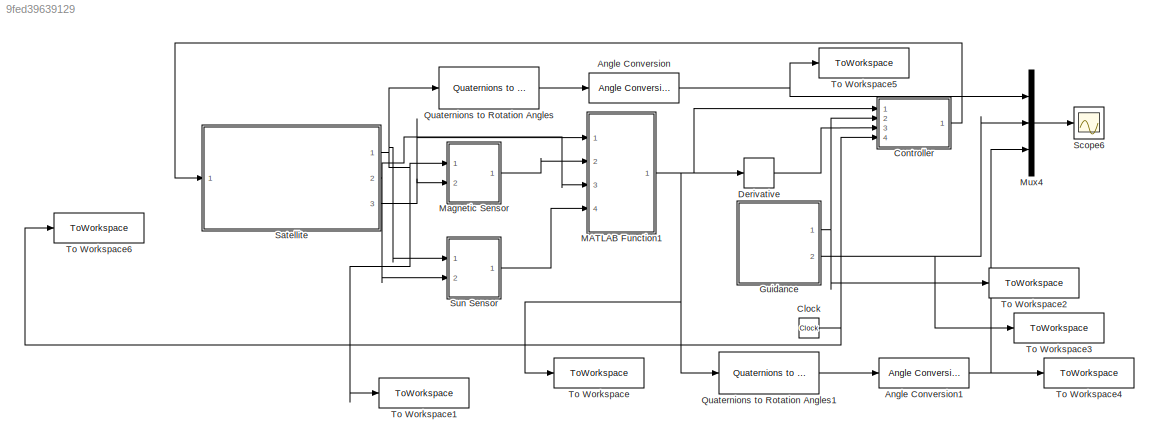
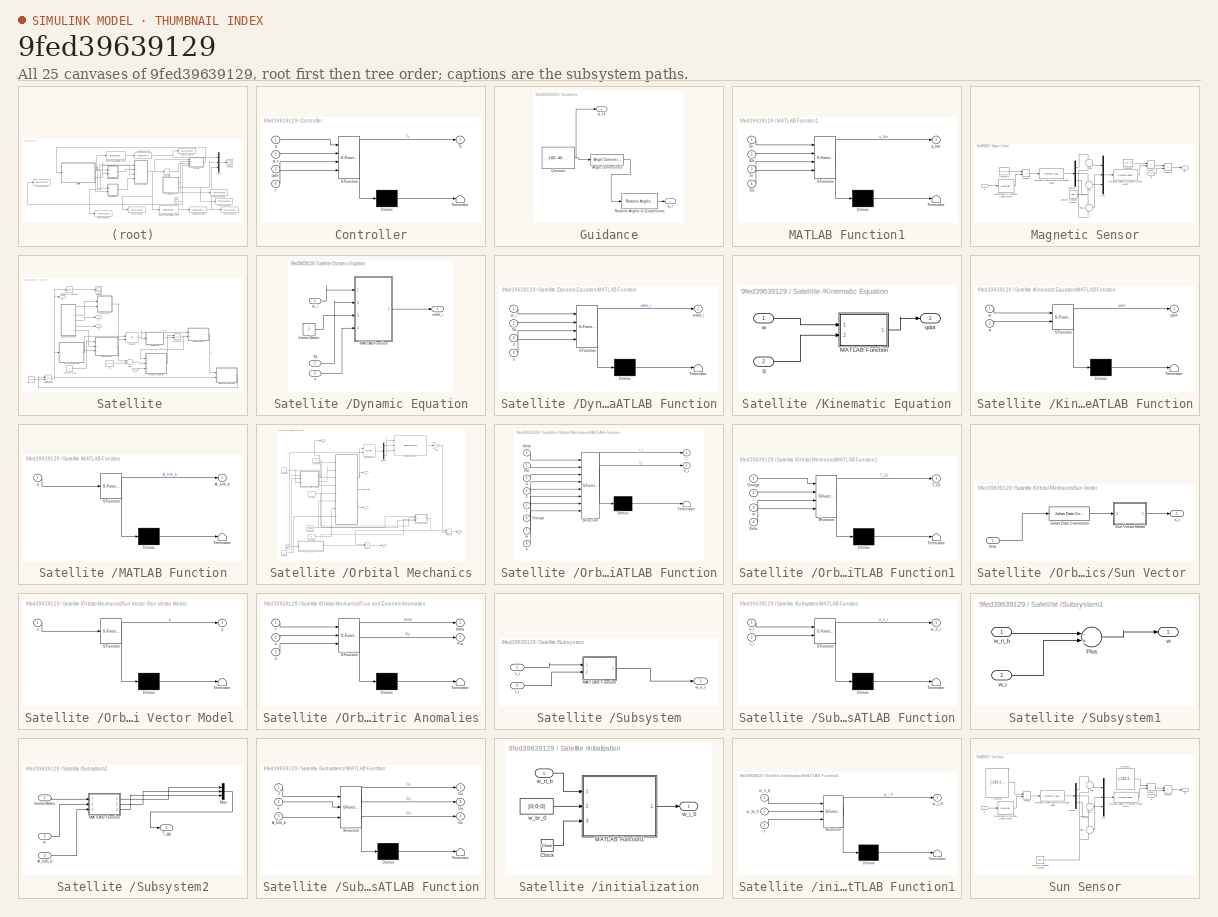
[diagram: thumbnail index - all 25 canvases of the model, root first then tree order]
MODEL slx_9fed39639129
KIND model
CONFIG AbsTol = auto
CONFIG EnableMultiTasking = off
CONFIG FixedStep = 0.00005
CONFIG MaxStep = auto
CONFIG MinStep = auto
CONFIG RelTol = 1e-3
CONFIG SampleTimeConstraint = Unconstrained
CONFIG Solver = ode23tb
CONFIG SolverName = ode23tb
CONFIG StartTime = 0.0
CONFIG StopTime = 20
BLOCK [Reference] Angle Conversion  REF=aerolibconvert2/Angle Conversion
  Ports = [1, 1]
  SourceBlock = aerolibconvert2/Angle Conversion
  SourceProductBaseCode = AE
  SourceProductName = Aerospace Blockset
  SourceType = Angle Conversion
BLOCK [Reference] Angle Conversion1  REF=aerolibconvert2/Angle Conversion
  Ports = [1, 1]
  SourceBlock = aerolibconvert2/Angle Conversion
  SourceProductBaseCode = AE
  SourceProductName = Aerospace Blockset
  SourceType = Angle Conversion
BLOCK [Clock] Clock
BLOCK [SubSystem] Controller
  ErrorFcn = Stateflow.Translate.translate
  PermitHierarchicalResolution = ExplicitOnly
  Ports = [4, 1]
  RequestExecContextInheritance = off
  SFBlockType = MATLAB Function
  TreatAsAtomicUnit = on
BLOCK [Demux] Controller/ Demux 
  Outputs = 1
  Ports = [1, 1]
BLOCK [S-Function] Controller/ SFunction 
  EnableBusSupport = on
  FunctionName = sf_sfun
  PortCounts = [4 2]
  Ports = [4, 2]
  SFcnIsStateOwnerBlock = off
  SFunctionDeploymentMode = off
  Tag = Stateflow S-Function 11
BLOCK [Terminator] Controller/ Terminator 
BLOCK [Outport] Controller/Tc
  IconDisplay = Port number
BLOCK [Inport] Controller/q
  IconDisplay = Port number
BLOCK [Inport] Controller/q_c
  IconDisplay = Port number
  Port = 2
BLOCK [Inport] Controller/qdot
  IconDisplay = Port number
  Port = 3
BLOCK [Inport] Controller/t
  IconDisplay = Port number
  Port = 4
BLOCK [Derivative] Derivative
BLOCK [SubSystem] Guidance
  Ports = [0, 2]
  RequestExecContextInheritance = off
BLOCK [Reference] Guidance/Angle Conversion2  REF=aerolibconvert2/Angle Conversion
  Ports = [1, 1]
  SourceBlock = aerolibconvert2/Angle Conversion
  SourceProductBaseCode = AE
  SourceProductName = Aerospace Blockset
  SourceType = Angle Conversion
BLOCK [Constant] Guidance/Constant
  Value = [-60; -40; 40]
  VectorParams1D = off
BLOCK [Reference] Guidance/Rotation Angles to Quaternions  REF=sharedtransform/Rotation Angles to Quaternions
  AttributesFormatString = Rotation Order: %<rotationOrder>
  Ports = [1, 1]
  SourceBlock = sharedtransform/Rotation Angles to Quaternions
  SourceProductBaseCode = AE
  SourceProductName = Aerospace Blockset
  SourceType = Ang2Quat
BLOCK [Outport] Guidance/q_c
  IconDisplay = Port number
BLOCK [Outport] Guidance/q_c1
  IconDisplay = Port number
  Port = 2
BLOCK [SubSystem] MATLAB Function1
  ErrorFcn = Stateflow.Translate.translate
  PermitHierarchicalResolution = ExplicitOnly
  Ports = [4, 1]
  RequestExecContextInheritance = off
  SFBlockType = MATLAB Function
  TreatAsAtomicUnit = on
BLOCK [Demux] MATLAB Function1/ Demux 
  Outputs = 1
  Ports = [1, 1]
BLOCK [S-Function] MATLAB Function1/ SFunction 
  EnableBusSupport = on
  FunctionName = sf_sfun
  PortCounts = [4 2]
  Ports = [4, 2]
  SFcnIsStateOwnerBlock = off
  SFunctionDeploymentMode = off
  Tag = Stateflow S-Function 12
BLOCK [Terminator] MATLAB Function1/ Terminator 
BLOCK [Inport] MATLAB Function1/Bb
  IconDisplay = Port number
  Port = 2
BLOCK [Inport] MATLAB Function1/Br
  IconDisplay = Port number
BLOCK [Inport] MATLAB Function1/Sb
  IconDisplay = Port number
  Port = 4
BLOCK [Inport] MATLAB Function1/Sr
  IconDisplay = Port number
  Port = 3
BLOCK [Outport] MATLAB Function1/q_bar
  IconDisplay = Port number
BLOCK [SubSystem] Magnetic Sensor
  Ports = [2, 1]
  RequestExecContextInheritance = off
BLOCK [Outport] Magnetic Sensor/Bb
  IconDisplay = Port number
BLOCK [Inport] Magnetic Sensor/Br
  IconDisplay = Port number
  Port = 2
BLOCK [Constant] Magnetic Sensor/Constant
  Value = [1 0 0; 0 0 -1; 0 1 0]
BLOCK [Constant] Magnetic Sensor/Constant1
  Value = [1 0 0; 0 0 1; 0 -1 0]
BLOCK [Demux] Magnetic Sensor/Demux
  DisplayOption = bar
  Outputs = 3
  Ports = [1, 3]
BLOCK [Reference] Magnetic Sensor/Direction Cosine Matrix to Rotation Angles  REF=sharedtransform/Direction Cosine Matrix
to Rotation Angles
  AttributesFormatString = Rotation Order: %<rotationOrder>
  Ports = [1, 1]
  SourceBlock = sharedtransform/Direction Cosine Matrix\nto Rotation Angles
  SourceProductBaseCode = AE
  SourceProductName = Aerospace Blockset
  SourceType = DCM2Ang
BLOCK [Mux] Magnetic Sensor/Mux
  DisplayOption = bar
  Inputs = 3
  Ports = [3, 1]
BLOCK [Sum] Magnetic Sensor/Plus
  IconShape = round
  InputSameDT = off
  OutDataTypeStr = Inherit: Inherit via internal rule
  Ports = [2, 1]
  SaturateOnIntegerOverflow = off
BLOCK [Sum] Magnetic Sensor/Plus1
  IconShape = round
  InputSameDT = off
  OutDataTypeStr = Inherit: Inherit via internal rule
  Ports = [2, 1]
  SaturateOnIntegerOverflow = off
BLOCK [Sum] Magnetic Sensor/Plus2
  IconShape = round
  InputSameDT = off
  OutDataTypeStr = Inherit: Inherit via internal rule
  Ports = [2, 1]
  SaturateOnIntegerOverflow = off
BLOCK [Product] Magnetic Sensor/Product
  InputSameDT = off
  Multiplication = Matrix(*)
  OutDataTypeStr = Inherit: Inherit via internal rule
  Ports = [2, 1]
  RndMeth = Floor
  SaturateOnIntegerOverflow = off
BLOCK [Product] Magnetic Sensor/Product1
  InputSameDT = off
  Multiplication = Matrix(*)
  OutDataTypeStr = Inherit: Inherit via internal rule
  Ports = [2, 1]
  RndMeth = Floor
  SaturateOnIntegerOverflow = off
BLOCK [Product] Magnetic Sensor/Product2
  InputSameDT = off
  Multiplication = Matrix(*)
  OutDataTypeStr = Inherit: Inherit via internal rule
  Ports = [2, 1]
  RndMeth = Floor
  SaturateOnIntegerOverflow = off
BLOCK [Reference] Magnetic Sensor/Quaternions to Direction Cosine Matrix  REF=sharedtransform/Quaternions to 
Direction Cosine Matrix
  Ports = [1, 1]
  SourceBlock = sharedtransform/Quaternions to \nDirection Cosine Matrix
  SourceProductBaseCode = AE
  SourceProductName = Aerospace Blockset
  SourceType = Quaternion2DCM
BLOCK [Reference] Magnetic Sensor/Rotation Angles to Direction Cosine Matrix  REF=sharedtransform/Rotation Angles to
Direction Cosine Matrix
  AttributesFormatString = Rotation Order: %<rotationOrder>
  Ports = [1, 1]
  SourceBlock = sharedtransform/Rotation Angles to\nDirection Cosine Matrix
  SourceProductBaseCode = AE
  SourceProductName = Aerospace Blockset
  SourceType = Ang2DCM
BLOCK [UniformRandomNumber] Magnetic Sensor/Uniform Random Number
  Maximum = deg2rad(0.5)
  Minimum = deg2rad(-0.5)
  SampleTime = 0.1
BLOCK [Inport] Magnetic Sensor/q
  IconDisplay = Port number
BLOCK [Mux] Mux4
  DisplayOption = bar
  Inputs = 3
  Ports = [3, 1]
BLOCK [Reference] Quaternions to Rotation Angles  REF=sharedtransform/Quaternions to Rotation Angles
  AttributesFormatString = Rotation Order: %<rotationOrder>
  Ports = [1, 1]
  SourceBlock = sharedtransform/Quaternions to Rotation Angles
  SourceProductBaseCode = AE
  SourceProductName = Aerospace Blockset
  SourceType = Quat2Ang
BLOCK [Reference] Quaternions to Rotation Angles1  REF=sharedtransform/Quaternions to Rotation Angles
  AttributesFormatString = Rotation Order: %<rotationOrder>
  Ports = [1, 1]
  SourceBlock = sharedtransform/Quaternions to Rotation Angles
  SourceProductBaseCode = AE
  SourceProductName = Aerospace Blockset
  SourceType = Quat2Ang
BLOCK [SubSystem] Satellite 
  Ports = [1, 3]
  RequestExecContextInheritance = off
BLOCK [Constant] Satellite / 
  Value = q0
  VectorParams1D = off
BLOCK [Outport] Satellite /Br
  IconDisplay = Port number
  Port = 3
  PortDimensions = [3,1]
BLOCK [SubSystem] Satellite /Dynamic Equation
  Ports = [3, 1]
  RequestExecContextInheritance = off
BLOCK [Constant] Satellite /Dynamic Equation/Inertia Matrix 
  Value = J
  VectorParams1D = off
BLOCK [SubSystem] Satellite /Dynamic Equation/MATLAB Function
  ErrorFcn = Stateflow.Translate.translate
  PermitHierarchicalResolution = ExplicitOnly
  Ports = [4, 1]
  RequestExecContextInheritance = off
  SFBlockType = MATLAB Function
  TreatAsAtomicUnit = on
BLOCK [Demux] Satellite /Dynamic Equation/MATLAB Function/ Demux 
  Outputs = 1
  Ports = [1, 1]
BLOCK [S-Function] Satellite /Dynamic Equation/MATLAB Function/ SFunction 
  EnableBusSupport = on
  FunctionName = sf_sfun
  PortCounts = [4 2]
  Ports = [4, 2]
  SFcnIsStateOwnerBlock = off
  SFunctionDeploymentMode = off
  Tag = Stateflow S-Function 8
BLOCK [Terminator] Satellite /Dynamic Equation/MATLAB Function/ Terminator 
BLOCK [Inport] Satellite /Dynamic Equation/MATLAB Function/J
  IconDisplay = Port number
  Port = 3
BLOCK [Inport] Satellite /Dynamic Equation/MATLAB Function/Td
  IconDisplay = Port number
  Port = 2
BLOCK [Inport] Satellite /Dynamic Equation/MATLAB Function/u
  IconDisplay = Port number
  Port = 4
BLOCK [Inport] Satellite /Dynamic Equation/MATLAB Function/w_i
  IconDisplay = Port number
BLOCK [Outport] Satellite /Dynamic Equation/MATLAB Function/wdot_i
  IconDisplay = Port number
BLOCK [Inport] Satellite /Dynamic Equation/Td
  IconDisplay = Port number
  Port = 2
BLOCK [Inport] Satellite /Dynamic Equation/u
  IconDisplay = Port number
  Port = 3
BLOCK [Inport] Satellite /Dynamic Equation/w_i 
  IconDisplay = Port number
BLOCK [Outport] Satellite /Dynamic Equation/wdot_i
  IconDisplay = Port number
  PortDimensions = [3 1]
BLOCK [Constant] Satellite /Inertia Matrix 
  Value = J
  VectorParams1D = off
BLOCK [Integrator] Satellite /Integrator
  InitialConditionSource = external
  Ports = [2, 1]
BLOCK [Integrator] Satellite /Integrator1
  InitialConditionSource = external
  Ports = [2, 1]
BLOCK [SubSystem] Satellite /Kinematic Equation
  Ports = [2, 1]
  RequestExecContextInheritance = off
BLOCK [SubSystem] Satellite /Kinematic Equation/MATLAB Function
  ErrorFcn = Stateflow.Translate.translate
  PermitHierarchicalResolution = ExplicitOnly
  Ports = [2, 1]
  RequestExecContextInheritance = off
  SFBlockType = MATLAB Function
  TreatAsAtomicUnit = on
BLOCK [Demux] Satellite /Kinematic Equation/MATLAB Function/ Demux 
  Outputs = 1
  Ports = [1, 1]
BLOCK [S-Function] Satellite /Kinematic Equation/MATLAB Function/ SFunction 
  EnableBusSupport = on
  FunctionName = sf_sfun
  PortCounts = [2 2]
  Ports = [2, 2]
  SFcnIsStateOwnerBlock = off
  SFunctionDeploymentMode = off
  Tag = Stateflow S-Function 7
BLOCK [Terminator] Satellite /Kinematic Equation/MATLAB Function/ Terminator 
BLOCK [Inport] Satellite /Kinematic Equation/MATLAB Function/q
  IconDisplay = Port number
  Port = 2
BLOCK [Outport] Satellite /Kinematic Equation/MATLAB Function/qdot
  IconDisplay = Port number
BLOCK [Inport] Satellite /Kinematic Equation/MATLAB Function/w
  IconDisplay = Port number
BLOCK [Inport] Satellite /Kinematic Equation/q
  IconDisplay = Port number
  Port = 2
  PortDimensions = [4 1]
BLOCK [Outport] Satellite /Kinematic Equation/qdot
  IconDisplay = Port number
  PortDimensions = [4 1]
BLOCK [Inport] Satellite /Kinematic Equation/w 
  IconDisplay = Port number
  PortDimensions = [3 1]
BLOCK [SubSystem] Satellite /MATLAB Function
  ErrorFcn = Stateflow.Translate.translate
  PermitHierarchicalResolution = ExplicitOnly
  Ports = [1, 1]
  RequestExecContextInheritance = off
  SFBlockType = MATLAB Function
  TreatAsAtomicUnit = on
BLOCK [Demux] Satellite /MATLAB Function/ Demux 
  Outputs = 1
  Ports = [1, 1]
BLOCK [S-Function] Satellite /MATLAB Function/ SFunction 
  EnableBusSupport = on
  FunctionName = sf_sfun
  PortCounts = [1 2]
  Ports = [1, 2]
  SFcnIsStateOwnerBlock = off
  SFunctionDeploymentMode = off
  Tag = Stateflow S-Function 6
BLOCK [Terminator] Satellite /MATLAB Function/ Terminator 
BLOCK [Outport] Satellite /MATLAB Function/A_lvlh_b
  IconDisplay = Port number
BLOCK [Inport] Satellite /MATLAB Function/q
  IconDisplay = Port number
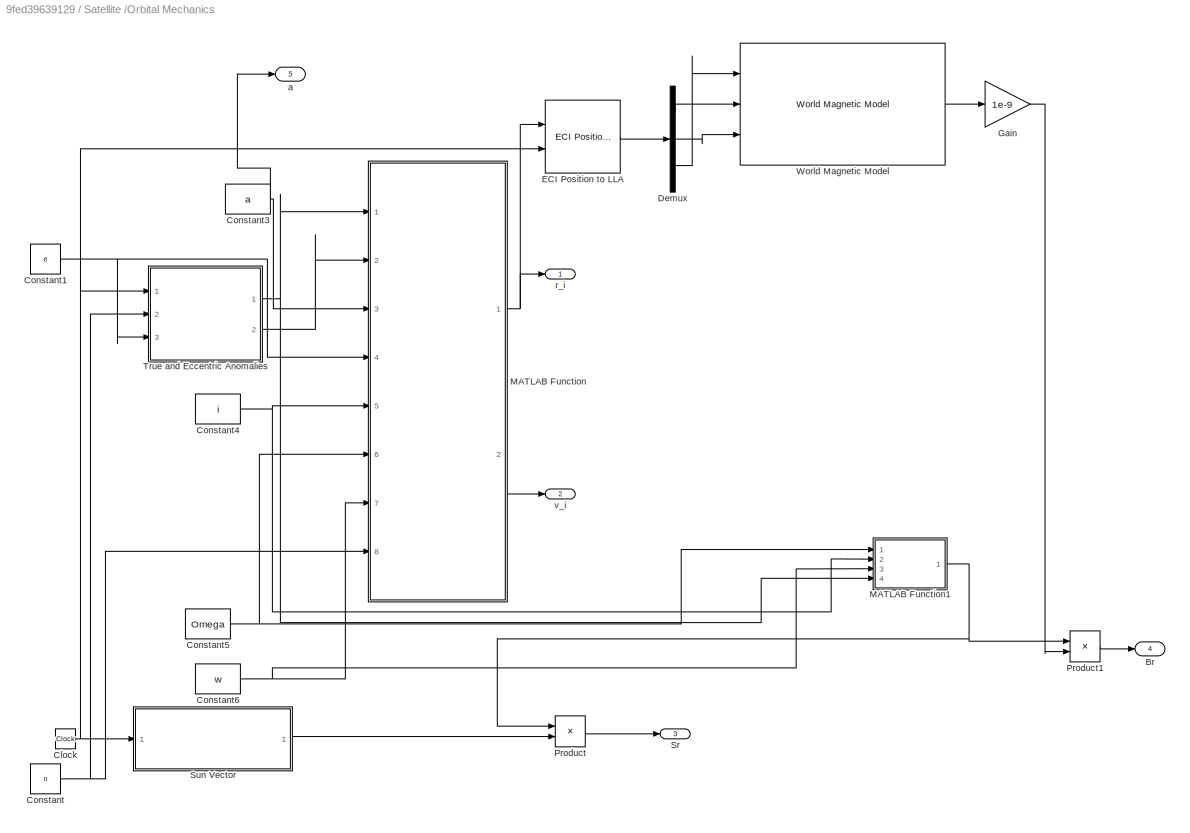
BLOCK [SubSystem] Satellite /Orbital Mechanics
  Ports = [0, 5]
  RequestExecContextInheritance = off
BLOCK [Outport] Satellite /Orbital Mechanics/Br
  IconDisplay = Port number
  Port = 4
BLOCK [Clock] Satellite /Orbital Mechanics/Clock
BLOCK [Constant] Satellite /Orbital Mechanics/Constant
  Value = n
BLOCK [Constant] Satellite /Orbital Mechanics/Constant1
  Value = e
BLOCK [Constant] Satellite /Orbital Mechanics/Constant3
  Value = a
BLOCK [Constant] Satellite /Orbital Mechanics/Constant4
  Value = i
BLOCK [Constant] Satellite /Orbital Mechanics/Constant5
  Value = Omega
BLOCK [Constant] Satellite /Orbital Mechanics/Constant6
  Value = w
BLOCK [Demux] Satellite /Orbital Mechanics/Demux
  DisplayOption = bar
  Outputs = 3
  Ports = [1, 3]
BLOCK [Reference] Satellite /Orbital Mechanics/ECI Position to LLA  REF=aerolibtransform2/ECI Position to LLA
  AttributesFormatString = %<red>
  Ports = [2, 1]
  SourceBlock = aerolibtransform2/ECI Position to LLA
  SourceProductBaseCode = AE
  SourceProductName = Aerospace Blockset
  SourceType = ECItoLLA
BLOCK [Gain] Satellite /Orbital Mechanics/Gain
  Gain = 1e-9
  OutDataTypeStr = Inherit: Inherit via internal rule
  ParamDataTypeStr = Inherit: Inherit via internal rule
  SaturateOnIntegerOverflow = off
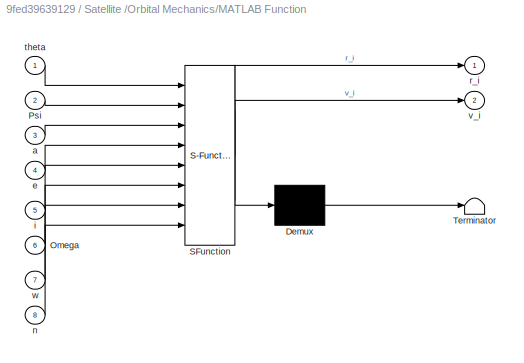
BLOCK [SubSystem] Satellite /Orbital Mechanics/MATLAB Function
  ErrorFcn = Stateflow.Translate.translate
  PermitHierarchicalResolution = ExplicitOnly
  Ports = [8, 2]
  RequestExecContextInheritance = off
  SFBlockType = MATLAB Function
  TreatAsAtomicUnit = on
BLOCK [Demux] Satellite /Orbital Mechanics/MATLAB Function/ Demux 
  Outputs = 1
  Ports = [1, 1]
BLOCK [S-Function] Satellite /Orbital Mechanics/MATLAB Function/ SFunction 
  EnableBusSupport = on
  FunctionName = sf_sfun
  PortCounts = [8 3]
  Ports = [8, 3]
  SFcnIsStateOwnerBlock = off
  SFunctionDeploymentMode = off
  Tag = Stateflow S-Function 1
BLOCK [Terminator] Satellite /Orbital Mechanics/MATLAB Function/ Terminator 
BLOCK [Inport] Satellite /Orbital Mechanics/MATLAB Function/Omega
  IconDisplay = Port number
  Port = 6
BLOCK [Inport] Satellite /Orbital Mechanics/MATLAB Function/Psi
  IconDisplay = Port number
  Port = 2
BLOCK [Inport] Satellite /Orbital Mechanics/MATLAB Function/a
  IconDisplay = Port number
  Port = 3
BLOCK [Inport] Satellite /Orbital Mechanics/MATLAB Function/e
  IconDisplay = Port number
  Port = 4
BLOCK [Inport] Satellite /Orbital Mechanics/MATLAB Function/i
  IconDisplay = Port number
  Port = 5
BLOCK [Inport] Satellite /Orbital Mechanics/MATLAB Function/n
  IconDisplay = Port number
  Port = 8
BLOCK [Outport] Satellite /Orbital Mechanics/MATLAB Function/r_i
  IconDisplay = Port number
BLOCK [Inport] Satellite /Orbital Mechanics/MATLAB Function/theta
  IconDisplay = Port number
BLOCK [Outport] Satellite /Orbital Mechanics/MATLAB Function/v_i
  IconDisplay = Port number
  Port = 2
BLOCK [Inport] Satellite /Orbital Mechanics/MATLAB Function/w
  IconDisplay = Port number
  Port = 7
BLOCK [SubSystem] Satellite /Orbital Mechanics/MATLAB Function1
  ErrorFcn = Stateflow.Translate.translate
  PermitHierarchicalResolution = ExplicitOnly
  Ports = [4, 1]
  RequestExecContextInheritance = off
  SFBlockType = MATLAB Function
  TreatAsAtomicUnit = on
BLOCK [Demux] Satellite /Orbital Mechanics/MATLAB Function1/ Demux 
  Outputs = 1
  Ports = [1, 1]
BLOCK [S-Function] Satellite /Orbital Mechanics/MATLAB Function1/ SFunction 
  EnableBusSupport = on
  FunctionName = sf_sfun
  PortCounts = [4 2]
  Ports = [4, 2]
  SFcnIsStateOwnerBlock = off
  SFunctionDeploymentMode = off
  Tag = Stateflow S-Function 10
BLOCK [Terminator] Satellite /Orbital Mechanics/MATLAB Function1/ Terminator 
BLOCK [Inport] Satellite /Orbital Mechanics/MATLAB Function1/Omega
  IconDisplay = Port number
BLOCK [Outport] Satellite /Orbital Mechanics/MATLAB Function1/T_i2r
  IconDisplay = Port number
BLOCK [Inport] Satellite /Orbital Mechanics/MATLAB Function1/i
  IconDisplay = Port number
  Port = 2
BLOCK [Inport] Satellite /Orbital Mechanics/MATLAB Function1/theta
  IconDisplay = Port number
  Port = 4
BLOCK [Inport] Satellite /Orbital Mechanics/MATLAB Function1/w
  IconDisplay = Port number
  Port = 3
BLOCK [Product] Satellite /Orbital Mechanics/Product
  InputSameDT = off
  Multiplication = Matrix(*)
  OutDataTypeStr = Inherit: Inherit via internal rule
  Ports = [2, 1]
  RndMeth = Floor
  SaturateOnIntegerOverflow = off
BLOCK [Product] Satellite /Orbital Mechanics/Product1
  InputSameDT = off
  Multiplication = Matrix(*)
  OutDataTypeStr = Inherit: Inherit via internal rule
  Ports = [2, 1]
  RndMeth = Floor
  SaturateOnIntegerOverflow = off
BLOCK [Outport] Satellite /Orbital Mechanics/Sr
  IconDisplay = Port number
  Port = 3
  PortDimensions = [3 1]
BLOCK [SubSystem] Satellite /Orbital Mechanics/Sun Vector 
  Ports = [1, 1]
  RequestExecContextInheritance = off
BLOCK [Reference] Satellite /Orbital Mechanics/Sun Vector /Julian Date Conversion  REF=aerolibconvert2/Julian Date Conversion
  Ports = [1, 1]
  SourceBlock = aerolibconvert2/Julian Date Conversion
  SourceProductBaseCode = AE
  SourceProductName = Aerospace Blockset
  SourceType = JulianDate
BLOCK [SubSystem] Satellite /Orbital Mechanics/Sun Vector /Sun Vector Model 
  ErrorFcn = Stateflow.Translate.translate
  PermitHierarchicalResolution = ExplicitOnly
  Ports = [1, 1]
  RequestExecContextInheritance = off
  SFBlockType = MATLAB Function
  TreatAsAtomicUnit = on
BLOCK [Demux] Satellite /Orbital Mechanics/Sun Vector /Sun Vector Model / Demux 
  Outputs = 1
  Ports = [1, 1]
BLOCK [S-Function] Satellite /Orbital Mechanics/Sun Vector /Sun Vector Model / SFunction 
  EnableBusSupport = on
  FunctionName = sf_sfun
  PortCounts = [1 2]
  Ports = [1, 2]
  SFcnIsStateOwnerBlock = off
  SFunctionDeploymentMode = off
  Tag = Stateflow S-Function 4
BLOCK [Terminator] Satellite /Orbital Mechanics/Sun Vector /Sun Vector Model / Terminator 
BLOCK [Inport] Satellite /Orbital Mechanics/Sun Vector /Sun Vector Model /u
  IconDisplay = Port number
BLOCK [Outport] Satellite /Orbital Mechanics/Sun Vector /Sun Vector Model /y
  IconDisplay = Port number
BLOCK [Outport] Satellite /Orbital Mechanics/Sun Vector /s_i
  IconDisplay = Port number
  PortDimensions = [3 1]
BLOCK [Inport] Satellite /Orbital Mechanics/Sun Vector /time 
  IconDisplay = Port number
BLOCK [SubSystem] Satellite /Orbital Mechanics/True and Eccentric Anomalies
  ErrorFcn = Stateflow.Translate.translate
  PermitHierarchicalResolution = ExplicitOnly
  Ports = [3, 2]
  RequestExecContextInheritance = off
  SFBlockType = MATLAB Function
  TreatAsAtomicUnit = on
BLOCK [Demux] Satellite /Orbital Mechanics/True and Eccentric Anomalies/ Demux 
  Outputs = 1
  Ports = [1, 1]
BLOCK [S-Function] Satellite /Orbital Mechanics/True and Eccentric Anomalies/ SFunction 
  EnableBusSupport = on
  FunctionName = sf_sfun
  PortCounts = [3 3]
  Ports = [3, 3]
  SFcnIsStateOwnerBlock = off
  SFunctionDeploymentMode = off
  Tag = Stateflow S-Function 2
BLOCK [Terminator] Satellite /Orbital Mechanics/True and Eccentric Anomalies/ Terminator 
BLOCK [Outport] Satellite /Orbital Mechanics/True and Eccentric Anomalies/Psi
  IconDisplay = Port number
  Port = 2
  VectorParamsAs1DForOutWhenUnconnected = off
BLOCK [Inport] Satellite /Orbital Mechanics/True and Eccentric Anomalies/e
  IconDisplay = Port number
  Port = 3
BLOCK [Inport] Satellite /Orbital Mechanics/True and Eccentric Anomalies/n
  IconDisplay = Port number
  Port = 2
BLOCK [Inport] Satellite /Orbital Mechanics/True and Eccentric Anomalies/t
  IconDisplay = Port number
BLOCK [Outport] Satellite /Orbital Mechanics/True and Eccentric Anomalies/theta
  IconDisplay = Port number
  VectorParamsAs1DForOutWhenUnconnected = off
BLOCK [Reference] Satellite /Orbital Mechanics/World Magnetic Model  REF=aerolibgravity2/World Magnetic Model
  AttributesFormatString = %<model>
  Ports = [3, 1]
  SourceBlock = aerolibgravity2/World Magnetic Model
  SourceProductBaseCode = AE
  SourceProductName = Aerospace Blockset
  SourceType = WorldMagneticModel
BLOCK [Outport] Satellite /Orbital Mechanics/a
  IconDisplay = Port number
  Port = 5
BLOCK [Outport] Satellite /Orbital Mechanics/r_i
  IconDisplay = Port number
  PortDimensions = [3 1]
BLOCK [Outport] Satellite /Orbital Mechanics/v_i
  IconDisplay = Port number
  Port = 2
  PortDimensions = [3 1]
BLOCK [Sum] Satellite /Plus
  InputSameDT = off
  OutDataTypeStr = Inherit: Inherit via internal rule
  Ports = [2, 1]
  SaturateOnIntegerOverflow = off
BLOCK [Product] Satellite /Product
  InputSameDT = off
  Multiplication = Matrix(*)
  OutDataTypeStr = Inherit: Inherit via internal rule
  Ports = [2, 1]
  RndMeth = Floor
  SaturateOnIntegerOverflow = off
BLOCK [Reference] Satellite /Radians to Degrees  REF=simulink_extras/Transformations/Radians
to Degrees
  Ports = [1, 1]
  SourceBlock = simulink_extras/Transformations/Radians\nto Degrees
  SourceProductBaseCode = SL
  SourceProductName = Simulink
  SourceType = RadiansToDegrees
BLOCK [Scope] Satellite /Scope2
  Floating = off
  NumInputPorts = 1
  Ports = [1]
  ScopeSpecificationString = Simulink.scopes.TimeScopeBlockCfg('CurrentConfiguration', extmgr.ConfigurationSet(extmgr.Configuration('Core','General UI',true),extmgr.Configuration('Core','Source UI',true),extmgr.Configuration('Sources','WiredSimulink',true,'DataLoggingVariableName','ScopeData4'),extmgr.Configuration('Visuals','Time Domain',true,'SerializedDisplays',{struct('MinYLimReal','-0.20184','MaxYLimReal','0.06867','YLab...<+1549ch>
BLOCK [Outport] Satellite /Sr
  IconDisplay = Port number
  Port = 2
BLOCK [SubSystem] Satellite /Subsystem
  Ports = [2, 1]
  RequestExecContextInheritance = off
BLOCK [SubSystem] Satellite /Subsystem/MATLAB Function
  ErrorFcn = Stateflow.Translate.translate
  PermitHierarchicalResolution = ExplicitOnly
  Ports = [2, 1]
  RequestExecContextInheritance = off
  SFBlockType = MATLAB Function
  TreatAsAtomicUnit = on
BLOCK [Demux] Satellite /Subsystem/MATLAB Function/ Demux 
  Outputs = 1
  Ports = [1, 1]
BLOCK [S-Function] Satellite /Subsystem/MATLAB Function/ SFunction 
  EnableBusSupport = on
  FunctionName = sf_sfun
  PortCounts = [2 2]
  Ports = [2, 2]
  SFcnIsStateOwnerBlock = off
  SFunctionDeploymentMode = off
  Tag = Stateflow S-Function 5
BLOCK [Terminator] Satellite /Subsystem/MATLAB Function/ Terminator 
BLOCK [Inport] Satellite /Subsystem/MATLAB Function/r_i
  IconDisplay = Port number
  Port = 2
BLOCK [Inport] Satellite /Subsystem/MATLAB Function/v_i
  IconDisplay = Port number
BLOCK [Outport] Satellite /Subsystem/MATLAB Function/w_ri_r
  IconDisplay = Port number
BLOCK [Inport] Satellite /Subsystem/r_i 
  IconDisplay = Port number
  Port = 2
BLOCK [Inport] Satellite /Subsystem/v_i 
  IconDisplay = Port number
BLOCK [Outport] Satellite /Subsystem/w_ri_r
  IconDisplay = Port number
  PortDimensions = [3 1]
BLOCK [SubSystem] Satellite /Subsystem1
  Ports = [2, 1]
  RequestExecContextInheritance = off
BLOCK [Sum] Satellite /Subsystem1/Plus
  InputSameDT = off
  Inputs = -+
  OutDataTypeStr = Inherit: Inherit via internal rule
  Ports = [2, 1]
  SaturateOnIntegerOverflow = off
BLOCK [Outport] Satellite /Subsystem1/w
  IconDisplay = Port number
BLOCK [Inport] Satellite /Subsystem1/w_i
  IconDisplay = Port number
  Port = 2
BLOCK [Inport] Satellite /Subsystem1/w_ri_b
  IconDisplay = Port number
  PortDimensions = [3 1]
BLOCK [SubSystem] Satellite /Subsystem2
  Ports = [3, 1]
  RequestExecContextInheritance = off
BLOCK [Inport] Satellite /Subsystem2/A_lvlh_b
  IconDisplay = Port number
  Port = 3
BLOCK [Inport] Satellite /Subsystem2/Inertia Matrix
  IconDisplay = Port number
BLOCK [SubSystem] Satellite /Subsystem2/MATLAB Function
  ErrorFcn = Stateflow.Translate.translate
  PermitHierarchicalResolution = ExplicitOnly
  Ports = [3, 3]
  RequestExecContextInheritance = off
  SFBlockType = MATLAB Function
  TreatAsAtomicUnit = on
BLOCK [Demux] Satellite /Subsystem2/MATLAB Function/ Demux 
  Outputs = 1
  Ports = [1, 1]
BLOCK [S-Function] Satellite /Subsystem2/MATLAB Function/ SFunction 
  EnableBusSupport = on
  FunctionName = sf_sfun
  PortCounts = [3 4]
  Ports = [3, 4]
  SFcnIsStateOwnerBlock = off
  SFunctionDeploymentMode = off
  Tag = Stateflow S-Function 3
BLOCK [Terminator] Satellite /Subsystem2/MATLAB Function/ Terminator 
BLOCK [Inport] Satellite /Subsystem2/MATLAB Function/A_lvlh_b
  IconDisplay = Port number
  Port = 3
BLOCK [Outport] Satellite /Subsystem2/MATLAB Function/Gx
  IconDisplay = Port number
BLOCK [Outport] Satellite /Subsystem2/MATLAB Function/Gy
  IconDisplay = Port number
  Port = 2
BLOCK [Outport] Satellite /Subsystem2/MATLAB Function/Gz
  IconDisplay = Port number
  Port = 3
BLOCK [Inport] Satellite /Subsystem2/MATLAB Function/J
  IconDisplay = Port number
BLOCK [Inport] Satellite /Subsystem2/MATLAB Function/a
  IconDisplay = Port number
  Port = 2
BLOCK [Mux] Satellite /Subsystem2/Mux
  DisplayOption = bar
  Inputs = 3
  Ports = [3, 1]
BLOCK [Outport] Satellite /Subsystem2/T_gg
  IconDisplay = Port number
  PortDimensions = [3,1]
BLOCK [Inport] Satellite /Subsystem2/a
  IconDisplay = Port number
  Port = 2
BLOCK [Inport] Satellite /T_c
  IconDisplay = Port number
BLOCK [Constant] Satellite /Td
  Value = [0; 0; 0]
  VectorParams1D = off
BLOCK [SubSystem] Satellite /initialization
  Ports = [1, 1]
  RequestExecContextInheritance = off
BLOCK [Clock] Satellite /initialization/Clock
BLOCK [SubSystem] Satellite /initialization/MATLAB Function1
  ErrorFcn = Stateflow.Translate.translate
  PermitHierarchicalResolution = ExplicitOnly
  Ports = [3, 1]
  RequestExecContextInheritance = off
  SFBlockType = MATLAB Function
  TreatAsAtomicUnit = on
BLOCK [Demux] Satellite /initialization/MATLAB Function1/ Demux 
  Outputs = 1
  Ports = [1, 1]
BLOCK [S-Function] Satellite /initialization/MATLAB Function1/ SFunction 
  EnableBusSupport = on
  FunctionName = sf_sfun
  PortCounts = [3 2]
  Ports = [3, 2]
  SFcnIsStateOwnerBlock = off
  SFunctionDeploymentMode = off
  Tag = Stateflow S-Function 9
BLOCK [Terminator] Satellite /initialization/MATLAB Function1/ Terminator 
BLOCK [Inport] Satellite /initialization/MATLAB Function1/t
  IconDisplay = Port number
  Port = 3
BLOCK [Inport] Satellite /initialization/MATLAB Function1/w_br_0
  IconDisplay = Port number
  Port = 2
BLOCK [Outport] Satellite /initialization/MATLAB Function1/w_i_0
  IconDisplay = Port number
BLOCK [Inport] Satellite /initialization/MATLAB Function1/w_ri_b
  IconDisplay = Port number
BLOCK [Constant] Satellite /initialization/w_br_0 
  Value = [0;0;0]
  VectorParams1D = off
BLOCK [Outport] Satellite /initialization/w_i_0
  IconDisplay = Port number
  PortDimensions = [3 1]
BLOCK [Inport] Satellite /initialization/w_ri_b
  IconDisplay = Port number
BLOCK [Outport] Satellite /q
  IconDisplay = Port number
BLOCK [Scope] Scope6
  Floating = off
  NumInputPorts = 1
  Ports = [1]
  ScopeSpecificationString = Simulink.scopes.TimeScopeBlockCfg('CurrentConfiguration', extmgr.ConfigurationSet(extmgr.Configuration('Core','General UI',true),extmgr.Configuration('Core','Source UI',true),extmgr.Configuration('Sources','WiredSimulink',true,'DataLoggingVariableName','ScopeData6'),extmgr.Configuration('Visuals','Time Domain',true,'SerializedDisplays',{struct('MinYLimReal','-80.14722','MaxYLimReal','53.92476','YL...<+1944ch>
BLOCK [SubSystem] Sun Sensor
  Ports = [2, 1]
  RequestExecContextInheritance = off
BLOCK [Constant] Sun Sensor/Constant
  Value = [-1 0 0; 0 0 -1; 0 -1 0]
BLOCK [Constant] Sun Sensor/Constant1
  Value = [-1 0 0; 0 0 -1; 0 -1 0]
BLOCK [Demux] Sun Sensor/Demux
  DisplayOption = bar
  Outputs = 3
  Ports = [1, 3]
BLOCK [Reference] Sun Sensor/Direction Cosine Matrix to Rotation Angles  REF=sharedtransform/Direction Cosine Matrix
to Rotation Angles
  AttributesFormatString = Rotation Order: %<rotationOrder>
  Ports = [1, 1]
  SourceBlock = sharedtransform/Direction Cosine Matrix\nto Rotation Angles
  SourceProductBaseCode = AE
  SourceProductName = Aerospace Blockset
  SourceType = DCM2Ang
BLOCK [Mux] Sun Sensor/Mux
  DisplayOption = bar
  Inputs = 3
  Ports = [3, 1]
BLOCK [Sum] Sun Sensor/Plus
  IconShape = round
  InputSameDT = off
  OutDataTypeStr = Inherit: Inherit via internal rule
  Ports = [2, 1]
  SaturateOnIntegerOverflow = off
BLOCK [Sum] Sun Sensor/Plus1
  IconShape = round
  InputSameDT = off
  OutDataTypeStr = Inherit: Inherit via internal rule
  Ports = [2, 1]
  SaturateOnIntegerOverflow = off
BLOCK [Sum] Sun Sensor/Plus2
  IconShape = round
  InputSameDT = off
  OutDataTypeStr = Inherit: Inherit via internal rule
  Ports = [2, 1]
  SaturateOnIntegerOverflow = off
BLOCK [Product] Sun Sensor/Product
  InputSameDT = off
  Multiplication = Matrix(*)
  OutDataTypeStr = Inherit: Inherit via internal rule
  Ports = [2, 1]
  RndMeth = Floor
  SaturateOnIntegerOverflow = off
BLOCK [Product] Sun Sensor/Product1
  InputSameDT = off
  Multiplication = Matrix(*)
  OutDataTypeStr = Inherit: Inherit via internal rule
  Ports = [2, 1]
  RndMeth = Floor
  SaturateOnIntegerOverflow = off
BLOCK [Product] Sun Sensor/Product2
  InputSameDT = off
  Multiplication = Matrix(*)
  OutDataTypeStr = Inherit: Inherit via internal rule
  Ports = [2, 1]
  RndMeth = Floor
  SaturateOnIntegerOverflow = off
BLOCK [Reference] Sun Sensor/Quaternions to Direction Cosine Matrix  REF=sharedtransform/Quaternions to 
Direction Cosine Matrix
  Ports = [1, 1]
  SourceBlock = sharedtransform/Quaternions to \nDirection Cosine Matrix
  SourceProductBaseCode = AE
  SourceProductName = Aerospace Blockset
  SourceType = Quaternion2DCM
BLOCK [Reference] Sun Sensor/Rotation Angles to Direction Cosine Matrix  REF=sharedtransform/Rotation Angles to
Direction Cosine Matrix
  AttributesFormatString = Rotation Order: %<rotationOrder>
  Ports = [1, 1]
  SourceBlock = sharedtransform/Rotation Angles to\nDirection Cosine Matrix
  SourceProductBaseCode = AE
  SourceProductName = Aerospace Blockset
  SourceType = Ang2DCM
BLOCK [Outport] Sun Sensor/Sb
  IconDisplay = Port number
BLOCK [Inport] Sun Sensor/Sr
  IconDisplay = Port number
  Port = 2
BLOCK [UniformRandomNumber] Sun Sensor/Uniform Random Number
  Maximum = deg2rad(0.005)
  Minimum = deg2rad(-0.005)
  SampleTime = 0.1
BLOCK [Inport] Sun Sensor/q
  IconDisplay = Port number
BLOCK [ToWorkspace] To Workspace
  FixptAsFi = on
  MaxDataPoints = inf
  Ports = [1]
  SampleTime = -1
  SaveFormat = Timeseries
  VariableName = simout
BLOCK [ToWorkspace] To Workspace1
  FixptAsFi = on
  MaxDataPoints = inf
  Ports = [1]
  SampleTime = -1
  SaveFormat = Timeseries
  VariableName = simout1
BLOCK [ToWorkspace] To Workspace2
  FixptAsFi = on
  MaxDataPoints = inf
  Ports = [1]
  SampleTime = -1
  SaveFormat = Timeseries
  VariableName = simout2
BLOCK [ToWorkspace] To Workspace3
  FixptAsFi = on
  MaxDataPoints = inf
  Ports = [1]
  SampleTime = -1
  SaveFormat = Timeseries
  VariableName = simout3
BLOCK [ToWorkspace] To Workspace4
  FixptAsFi = on
  MaxDataPoints = inf
  Ports = [1]
  SampleTime = -1
  SaveFormat = Timeseries
  VariableName = simout4
BLOCK [ToWorkspace] To Workspace5
  FixptAsFi = on
  MaxDataPoints = inf
  Ports = [1]
  SampleTime = -1
  SaveFormat = Timeseries
  VariableName = simout5
BLOCK [ToWorkspace] To Workspace6
  FixptAsFi = on
  MaxDataPoints = inf
  Ports = [1]
  SampleTime = -1
  SaveFormat = Timeseries
  VariableName = simout6
NET Angle Conversion1:1 -> Mux4:3, To Workspace4:1
NET Angle Conversion:1 -> Mux4:1, To Workspace5:1
NET Clock:1 -> Controller:4, To Workspace6:1
LINE Controller:1 -> Satellite :1
LINE Derivative:1 -> Controller:3
LINE Guidance/Angle Conversion2:1 -> Guidance/Rotation Angles to Quaternions:1
NET Guidance/Constant:1 -> Guidance/Angle Conversion2:1, Guidance/q_c1:1
LINE Guidance/Rotation Angles to Quaternions:1 -> Guidance/q_c:1
NET Guidance:1 -> Controller:2, To Workspace2:1
NET Guidance:2 -> Mux4:2, To Workspace3:1
NET MATLAB Function1:1 -> Controller:1, Derivative:1, Quaternions to Rotation Angles1:1, To Workspace:1
LINE Magnetic Sensor/Br:1 -> Magnetic Sensor/Product2:2
LINE Magnetic Sensor/Constant1:1 -> Magnetic Sensor/Product:1
LINE Magnetic Sensor/Constant:1 -> Magnetic Sensor/Product1:1
LINE Magnetic Sensor/Demux:1 -> Magnetic Sensor/Plus:1
LINE Magnetic Sensor/Demux:2 -> Magnetic Sensor/Plus1:1
LINE Magnetic Sensor/Demux:3 -> Magnetic Sensor/Plus2:1
LINE Magnetic Sensor/Direction Cosine Matrix to Rotation Angles:1 -> Magnetic Sensor/Demux:1
LINE Magnetic Sensor/Mux:1 -> Magnetic Sensor/Rotation Angles to Direction Cosine Matrix:1
LINE Magnetic Sensor/Plus1:1 -> Magnetic Sensor/Mux:2
LINE Magnetic Sensor/Plus2:1 -> Magnetic Sensor/Mux:3
LINE Magnetic Sensor/Plus:1 -> Magnetic Sensor/Mux:1
LINE Magnetic Sensor/Product1:1 -> Magnetic Sensor/Product2:1
LINE Magnetic Sensor/Product2:1 -> Magnetic Sensor/Bb:1
LINE Magnetic Sensor/Product:1 -> Magnetic Sensor/Direction Cosine Matrix to Rotation Angles:1
LINE Magnetic Sensor/Quaternions to Direction Cosine Matrix:1 -> Magnetic Sensor/Product:2
LINE Magnetic Sensor/Rotation Angles to Direction Cosine Matrix:1 -> Magnetic Sensor/Product1:2
NET Magnetic Sensor/Uniform Random Number:1 -> Magnetic Sensor/Plus1:2, Magnetic Sensor/Plus2:2, Magnetic Sensor/Plus:2
LINE Magnetic Sensor/q:1 -> Magnetic Sensor/Quaternions to Direction Cosine Matrix:1
LINE Magnetic Sensor:1 -> MATLAB Function1:2
LINE Mux4:1 -> Scope6:1
LINE Quaternions to Rotation Angles1:1 -> Angle Conversion1:1
LINE Quaternions to Rotation Angles:1 -> Angle Conversion:1
LINE Satellite / :1 -> Satellite /Integrator:2
LINE Satellite /Dynamic Equation/Inertia Matrix :1 -> Satellite /Dynamic Equation/MATLAB Function:3
LINE Satellite /Dynamic Equation/MATLAB Function:1 -> Satellite /Dynamic Equation/wdot_i:1
LINE Satellite /Dynamic Equation/Td:1 -> Satellite /Dynamic Equation/MATLAB Function:2
LINE Satellite /Dynamic Equation/u:1 -> Satellite /Dynamic Equation/MATLAB Function:4
LINE Satellite /Dynamic Equation/w_i :1 -> Satellite /Dynamic Equation/MATLAB Function:1
LINE Satellite /Dynamic Equation:1 -> Satellite /Integrator1:1
LINE Satellite /Inertia Matrix :1 -> Satellite /Subsystem2:1
NET Satellite /Integrator1:1 -> Satellite /Dynamic Equation:1, Satellite /Subsystem1:2
NET Satellite /Integrator:1 -> Satellite /Kinematic Equation:2, Satellite /MATLAB Function:1, Satellite /Radians to Degrees:1, Satellite /q:1
LINE Satellite /Kinematic Equation/MATLAB Function:1 -> Satellite /Kinematic Equation/qdot:1
LINE Satellite /Kinematic Equation/q:1 -> Satellite /Kinematic Equation/MATLAB Function:2
LINE Satellite /Kinematic Equation/w :1 -> Satellite /Kinematic Equation/MATLAB Function:1
LINE Satellite /Kinematic Equation:1 -> Satellite /Integrator:1
NET Satellite /MATLAB Function:1 -> Satellite /Product:1, Satellite /Subsystem2:3
NET Satellite /Orbital Mechanics/Clock:1 -> Satellite /Orbital Mechanics/ECI Position to LLA:2, Satellite /Orbital Mechanics/Sun Vector :1, Satellite /Orbital Mechanics/True and Eccentric Anomalies:1
NET Satellite /Orbital Mechanics/Constant1:1 -> Satellite /Orbital Mechanics/MATLAB Function:4, Satellite /Orbital Mechanics/True and Eccentric Anomalies:3
NET Satellite /Orbital Mechanics/Constant3:1 -> Satellite /Orbital Mechanics/MATLAB Function:3, Satellite /Orbital Mechanics/a:1
NET Satellite /Orbital Mechanics/Constant4:1 -> Satellite /Orbital Mechanics/MATLAB Function1:2, Satellite /Orbital Mechanics/MATLAB Function:5
NET Satellite /Orbital Mechanics/Constant5:1 -> Satellite /Orbital Mechanics/MATLAB Function1:1, Satellite /Orbital Mechanics/MATLAB Function:6
NET Satellite /Orbital Mechanics/Constant6:1 -> Satellite /Orbital Mechanics/MATLAB Function1:3, Satellite /Orbital Mechanics/MATLAB Function:7
NET Satellite /Orbital Mechanics/Constant:1 -> Satellite /Orbital Mechanics/MATLAB Function:8, Satellite /Orbital Mechanics/True and Eccentric Anomalies:2
LINE Satellite /Orbital Mechanics/Demux:1 -> Satellite /Orbital Mechanics/World Magnetic Model:2
LINE Satellite /Orbital Mechanics/Demux:2 -> Satellite /Orbital Mechanics/World Magnetic Model:3
LINE Satellite /Orbital Mechanics/Demux:3 -> Satellite /Orbital Mechanics/World Magnetic Model:1
LINE Satellite /Orbital Mechanics/ECI Position to LLA:1 -> Satellite /Orbital Mechanics/Demux:1
LINE Satellite /Orbital Mechanics/Gain:1 -> Satellite /Orbital Mechanics/Product1:2
NET Satellite /Orbital Mechanics/MATLAB Function1:1 -> Satellite /Orbital Mechanics/Product1:1, Satellite /Orbital Mechanics/Product:1
NET Satellite /Orbital Mechanics/MATLAB Function:1 -> Satellite /Orbital Mechanics/ECI Position to LLA:1, Satellite /Orbital Mechanics/r_i:1
LINE Satellite /Orbital Mechanics/MATLAB Function:2 -> Satellite /Orbital Mechanics/v_i:1
LINE Satellite /Orbital Mechanics/Product1:1 -> Satellite /Orbital Mechanics/Br:1
LINE Satellite /Orbital Mechanics/Product:1 -> Satellite /Orbital Mechanics/Sr:1
LINE Satellite /Orbital Mechanics/Sun Vector /Julian Date Conversion:1 -> Satellite /Orbital Mechanics/Sun Vector /Sun Vector Model :1
LINE Satellite /Orbital Mechanics/Sun Vector /Sun Vector Model :1 -> Satellite /Orbital Mechanics/Sun Vector /s_i:1
LINE Satellite /Orbital Mechanics/Sun Vector /time :1 -> Satellite /Orbital Mechanics/Sun Vector /Julian Date Conversion:1
LINE Satellite /Orbital Mechanics/Sun Vector :1 -> Satellite /Orbital Mechanics/Product:2
NET Satellite /Orbital Mechanics/True and Eccentric Anomalies:1 -> Satellite /Orbital Mechanics/MATLAB Function1:4, Satellite /Orbital Mechanics/MATLAB Function:1
LINE Satellite /Orbital Mechanics/True and Eccentric Anomalies:2 -> Satellite /Orbital Mechanics/MATLAB Function:2
LINE Satellite /Orbital Mechanics/World Magnetic Model:1 -> Satellite /Orbital Mechanics/Gain:1
LINE Satellite /Orbital Mechanics:1 -> Satellite /Subsystem:2
LINE Satellite /Orbital Mechanics:2 -> Satellite /Subsystem:1
LINE Satellite /Orbital Mechanics:3 -> Satellite /Sr:1
LINE Satellite /Orbital Mechanics:4 -> Satellite /Br:1
LINE Satellite /Orbital Mechanics:5 -> Satellite /Subsystem2:2
LINE Satellite /Plus:1 -> Satellite /Dynamic Equation:2
NET Satellite /Product:1 -> Satellite /Subsystem1:1, Satellite /initialization:1
LINE Satellite /Radians to Degrees:1 -> Satellite /Scope2:1
LINE Satellite /Subsystem/MATLAB Function:1 -> Satellite /Subsystem/w_ri_r:1
LINE Satellite /Subsystem/r_i :1 -> Satellite /Subsystem/MATLAB Function:2
LINE Satellite /Subsystem/v_i :1 -> Satellite /Subsystem/MATLAB Function:1
LINE Satellite /Subsystem1/Plus:1 -> Satellite /Subsystem1/w:1
LINE Satellite /Subsystem1/w_i:1 -> Satellite /Subsystem1/Plus:2
LINE Satellite /Subsystem1/w_ri_b:1 -> Satellite /Subsystem1/Plus:1
LINE Satellite /Subsystem1:1 -> Satellite /Kinematic Equation:1
LINE Satellite /Subsystem2/A_lvlh_b:1 -> Satellite /Subsystem2/MATLAB Function:3
LINE Satellite /Subsystem2/Inertia Matrix:1 -> Satellite /Subsystem2/MATLAB Function:1
LINE Satellite /Subsystem2/MATLAB Function:1 -> Satellite /Subsystem2/Mux:1
LINE Satellite /Subsystem2/MATLAB Function:2 -> Satellite /Subsystem2/Mux:2
LINE Satellite /Subsystem2/MATLAB Function:3 -> Satellite /Subsystem2/Mux:3
LINE Satellite /Subsystem2/Mux:1 -> Satellite /Subsystem2/T_gg:1
LINE Satellite /Subsystem2/a:1 -> Satellite /Subsystem2/MATLAB Function:2
LINE Satellite /Subsystem2:1 -> Satellite /Plus:1
LINE Satellite /Subsystem:1 -> Satellite /Product:2
LINE Satellite /T_c:1 -> Satellite /Dynamic Equation:3
LINE Satellite /Td:1 -> Satellite /Plus:2
LINE Satellite /initialization/Clock:1 -> Satellite /initialization/MATLAB Function1:3
LINE Satellite /initialization/MATLAB Function1:1 -> Satellite /initialization/w_i_0:1
LINE Satellite /initialization/w_br_0 :1 -> Satellite /initialization/MATLAB Function1:2
LINE Satellite /initialization/w_ri_b:1 -> Satellite /initialization/MATLAB Function1:1
LINE Satellite /initialization:1 -> Satellite /Integrator1:2
NET Satellite :1 -> Magnetic Sensor:1, Quaternions to Rotation Angles:1, Sun Sensor:1, To Workspace1:1
NET Satellite :2 -> MATLAB Function1:3, Sun Sensor:2
NET Satellite :3 -> MATLAB Function1:1, Magnetic Sensor:2
LINE Sun Sensor/Constant1:1 -> Sun Sensor/Product1:1
LINE Sun Sensor/Constant:1 -> Sun Sensor/Product:1
LINE Sun Sensor/Demux:1 -> Sun Sensor/Plus:1
LINE Sun Sensor/Demux:2 -> Sun Sensor/Plus1:1
LINE Sun Sensor/Demux:3 -> Sun Sensor/Plus2:1
LINE Sun Sensor/Direction Cosine Matrix to Rotation Angles:1 -> Sun Sensor/Demux:1
LINE Sun Sensor/Mux:1 -> Sun Sensor/Rotation Angles to Direction Cosine Matrix:1
LINE Sun Sensor/Plus1:1 -> Sun Sensor/Mux:2
LINE Sun Sensor/Plus2:1 -> Sun Sensor/Mux:3
LINE Sun Sensor/Plus:1 -> Sun Sensor/Mux:1
LINE Sun Sensor/Product1:1 -> Sun Sensor/Product2:1
LINE Sun Sensor/Product2:1 -> Sun Sensor/Sb:1
LINE Sun Sensor/Product:1 -> Sun Sensor/Direction Cosine Matrix to Rotation Angles:1
LINE Sun Sensor/Quaternions to Direction Cosine Matrix:1 -> Sun Sensor/Product:2
LINE Sun Sensor/Rotation Angles to Direction Cosine Matrix:1 -> Sun Sensor/Product1:2
LINE Sun Sensor/Sr:1 -> Sun Sensor/Product2:2
NET Sun Sensor/Uniform Random Number:1 -> Sun Sensor/Plus1:2, Sun Sensor/Plus2:2, Sun Sensor/Plus:2
LINE Sun Sensor/q:1 -> Sun Sensor/Quaternions to Direction Cosine Matrix:1
LINE Sun Sensor:1 -> MATLAB Function1:4
note: NET lines group one-source signal fan-out (src -> all destinations, sorted); 1:1 wires keep LINE
CHART Satellite
/Orbital Mechanics/MATLAB Function states=1 transitions=1
  STATE_LABEL 'eML_blk_kernel()'
  STATE_LABEL "SCRIPT:\nfunction [r_i, v_i] = fcn(theta, Psi, a, e, i, Omega, w, n)\nx = a * cos(Psi) - a * e;\ny = a * sin(Psi) * sqrt(1 - e^2);\nr = norm([x; y; 0]);\nv_x = (a^2 * n)/r * (-sin(Psi));\nv_y = (a^2 * n)/r * (sqrt(1 - e^2) * cos(Psi));\nT_p2i = [cos(Omega) sin(Omega) 0; -sin(Omega) cos(Omega) 0; 0 0 1]' * [1 0 0; 0 cos(i) sin(i); 0 -sin(i) cos(i)]' * [cos(w) sin(w) 0; -sin(w) cos(w) 0; 0 0 1]';\n[r_i] = T...<+49ch>"
CHART Satellite
/Orbital Mechanics/True and Eccentric Anomalies states=1 transitions=1
  STATE_LABEL 'eML_blk_kernel()'
  STATE_LABEL 'SCRIPT:\nfunction [theta, Psi]  = fcn(t, n, e)\n\nt_0 = 0;\n\n%Mean Anomaly (t_0 = 0)\nM = n*(t-t_0);\n\n%Eccentric Anomaly (can use this method since e<1)\nPsi_old= 0;\nPsi_new = M;\n\nwhile abs(Psi_new-Psi_old)>1e-12    \n    Psi_old = Psi_new;\n    Psi_new = M + e * sin(Psi_old);\nend\n\nPsi=Psi_new;\n\n%True Anomaly\ntheta = 2*atan2(sqrt(1+e)*tan(Psi/2),sqrt(1-e));\n\nif theta<0\n    theta = theta+2*pi;\nend\n\n\n'
CHART Satellite
/Subsystem2/MATLAB Function states=1 transitions=1
  STATE_LABEL 'eML_blk_kernel()'
  STATE_LABEL 'SCRIPT:\nfunction [Gx, Gy, Gz]  = fcn(J, a, A_lvlh_b)\nG = 6.669 * 10^(-11);\nM_Earth = 5.9742 * 10^24;\nmu = G * M_Earth;\n% G = 6*mu/(2*a^3) * [q1 * (Iz - Iy); q2 * (Iz - Ix); 0];\n% Gx = 3*mu/(2*R0^3) * (Iz - Iy) * sin(2*phi) * cos(theta)^2;\n% Gy = 3*mu/(2*R0^3) * (Iz - Ix) * sin(2*theta) * cos(phi);\n% Gz = 3*mu/(2*R0^3) * (Ix - Iy) * sin(2*theta) * sin(phi);\nR = A_lvlh_b * [0;0;-a];\nx = 3 * mu / a^5...<+66ch>'
CHART Satellite
/Orbital Mechanics/Sun Vector
/Sun Vector Model
 states=1 transitions=1
  STATE_LABEL 'eML_blk_kernel()'
  STATE_LABEL 'SCRIPT:\nfunction y = fcn(u)\nJD_TU1 = u;\nT_UT1 = (JD_TU1 - 2451545.0)/36525;\nLambda_Mo = 280.460 + 36000.771 * T_UT1;\nLambda_Mo = rem(Lambda_Mo, 360);\nif Lambda_Mo < 0\n    Lambda_Mo =  Lambda_Mo + 360; \nend\nT_TDB = T_UT1;\nMo = 357.5291092 + 35999.05034 * T_TDB;\nMo = rem(Mo, 360);\nif Mo < 0\n    Mo = Mo + 360;\nend\nLambda_ecliptic = Lambda_Mo + 1.914666471 * sind(Mo) + 0.019994643 * sind(2 * Mo);\nro =...<+282ch>'
CHART Satellite
/Subsystem/MATLAB Function states=1 transitions=1
  STATE_LABEL 'eML_blk_kernel()'
  STATE_LABEL 'SCRIPT:\nfunction w_ri_r = fcn(v_i,  r_i)\n    % Keplerian Orbit\n    w_i = 0;\n    r = norm(r_i);\n    w_j = -1/(r^2 * norm(cross(v_i,r_i))) * dot(v_i, dot(r_i,v_i)*r_i - r^2*v_i);\n    w_k = 0;\n    w_ri_r = [w_i ; w_j; w_k];\n'
CHART Satellite
/MATLAB Function states=1 transitions=1
  STATE_LABEL 'eML_blk_kernel()'
  STATE_LABEL 'SCRIPT:\nfunction A_lvlh_b = fcn(q)\nq0 = q(1);\nq1 = q(2);\nq2 = q(3);\nq3 = q(4);\nA_lvlh_b = [2*q0^2 - 1 + 2*q1^2, 2*q1*q2 + 2*q0*q3, 2*q1*q3 - 2*q0*q2; ...\n    2*q1*q2 - 2*q0*q3, 2*q0^2 - 1 + 2*q2^2, 2*q2*q3 + 2*q0*q1; ...\n    2*q1*q3 + 2*q0*q2, 2*q2*q3 - 2*q0*q1, 2*q0^2 - 1 + 2*q3^2];\n'
CHART Satellite
/Kinematic Equation/MATLAB Function states=1 transitions=1
  STATE_LABEL 'eML_blk_kernel()'
  STATE_LABEL 'SCRIPT:\nfunction qdot = fcn(w, q)\n% w1 = w(1);\n% w2 = w(2);\n% w3 = w(3);\n% qdot = 1/2 * [ 0 -w1 -w2 -w3; ...    \n%               w1  0   w3 -w2; ...\n%               w2 -w3  0   w1; ...\n%               w3  w2 -w1  0 ] * q;\nq0 = q(1);\nq1 = q(2);\nq2 = q(3);\nq3 = q(4);\nqdot = 1/2 * [q0 -q1 -q2 -q3; q1 q0 -q3 q2; q2 q3 q0 -q1; q3 -q2 q1 q0] * [0;w];\n'
CHART Satellite
/Dynamic Equation/MATLAB Function states=1 transitions=1
  STATE_LABEL 'eML_blk_kernel()'
  STATE_LABEL 'SCRIPT:\nfunction wdot_i = fcn(w_i, Td, J, u)\nwdot_i = inv(J) * (cross(-w_i, (J * w_i)) + Td + u);'
CHART Satellite
/initialization/MATLAB Function1 states=1 transitions=1
  STATE_LABEL 'eML_blk_kernel()'
  STATE_LABEL 'SCRIPT:\nfunction w_i_0  = fcn(w_ri_b, w_br_0, t)\n    if t == 0\n        w_i_0 = w_br_0 + w_ri_b;\n    else \n        w_i_0 = [0; 0; 0];\n    end'
CHART Satellite
/Orbital Mechanics/MATLAB Function1 states=1 transitions=1
  STATE_LABEL 'eML_blk_kernel()'
  STATE_LABEL 'SCRIPT:\nfunction T_i2r = fcn(Omega, i, w, theta)\nT_i2p = [cos(w) sin(w) 0; -sin(w) cos(w) 0; 0 0 1] ...\n    * [1 0 0; 0 cos(i) sin(i); 0 -sin(i) cos(i)] ...\n    * [cos(Omega) sin(Omega) 0; -sin(Omega) cos(Omega) 0; 0 0 1];\nT_p2r = [-sin(theta) cos(theta) 0; 0 0 -1; -cos(theta) sin(theta) 0];\nT_i2r = T_i2p * T_p2r;'
CHART Controller states=1 transitions=1
  STATE_LABEL 'eML_blk_kernel()'
  STATE_LABEL 'SCRIPT:\nfunction Tc = fcn(q, q_c, qdot, t)\nif t <= 1\n    Tc = [0;0;0];\nelse\n    qT4 = q_c(1);\n    qT1 = q_c(2);\n    qT2 = q_c(3);\n    qT3 = q_c(4);\n    qS4 = q(1);\n    qS2 = q(3);\n    qS3 = q(4);\n    qS1 = q(2);\n    qdot4 = qdot(1);\n    qdot1 = qdot(2);\n    qdot2 = qdot(3);\n    qdot3 = qdot(4);\n    w = 2 * [qS4 qS3 -qS2 -qS1; -qS3 qS4 qS1 -qS2; qS2 -qS1 qS4 -qS3] * ...\n        [qdot1; qdot2; qdot3...<+437ch>'
CHART MATLAB Function1 states=1 transitions=1
  STATE_LABEL 'eML_blk_kernel()'
  STATE_LABEL "SCRIPT:\nfunction q_bar  = fcn(Br, Bb, Sr, Sb)\nBr = Br / norm(Br);\nBb = Bb / norm(Bb);\nSr = Sr / norm(Sr);\nSb = Sb / norm(Sb);\nwk = [1 10];\nB = wk(1) * Br * Bb' + wk(2) * Sr * Sb';\nS = B + B';\nZ = [B(3,2) - B(2,3); B(1,3) - B(3,1); B(2,1) - B(1,2)];\nsigma = trace(B);\nK = [S - sigma*eye(3,3) Z; Z' sigma];\n[V,D] = eig(K);\nDE = real([D(1,1); D(2,2); D(3,3); D(4,4)]);\nsig_max = max(DE);\nif sig_max == D...<+235ch>"
